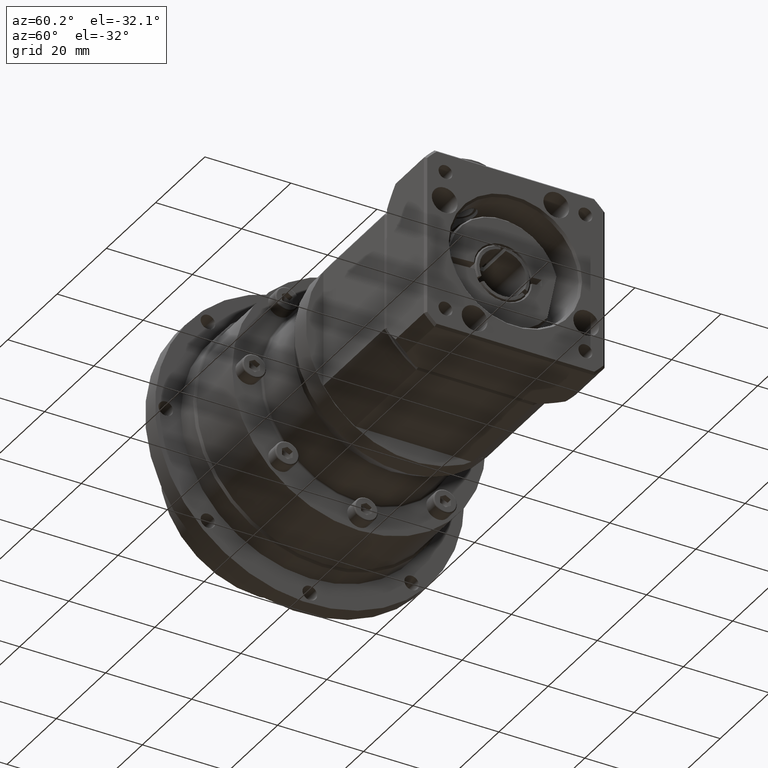
[diagram: clean part render]
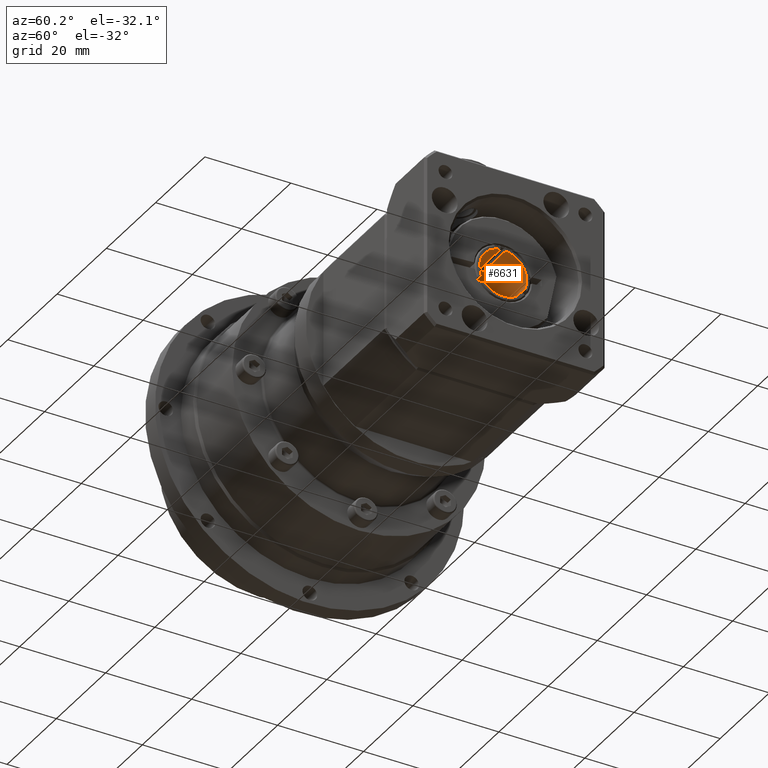
[diagram: same view with one face highlighted and labeled with its STEP entity id]
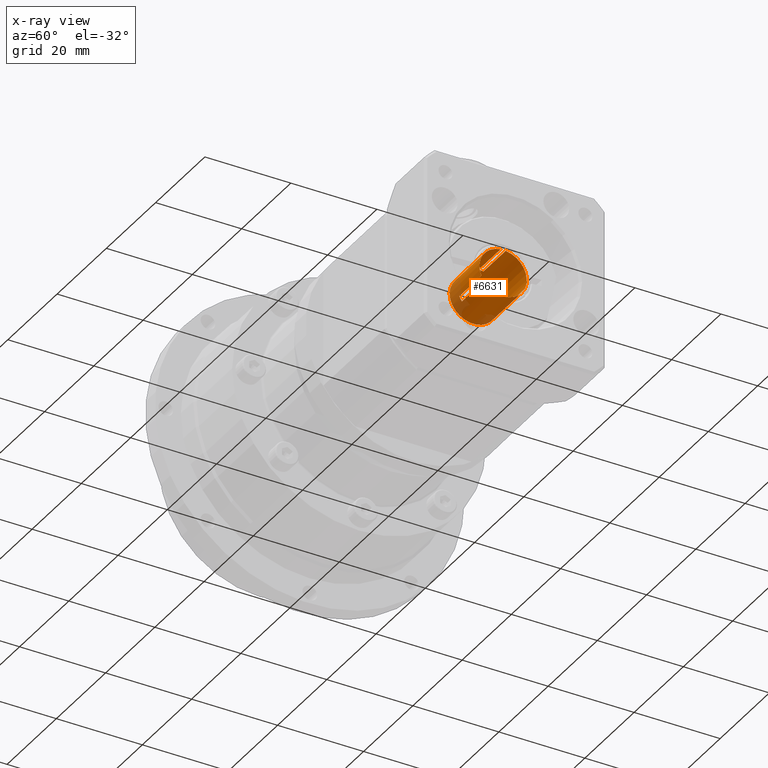
[diagram: x-ray of the same camera — body ghosted, the highlighted face saturated]
A machine part, auxiliary view. The second image highlights one B-rep face of the part: STEP entity #6631.
The next image is the same camera in x-ray: the body ghosted, the highlighted face saturated — about 14% of this face is hidden behind the body in this view.
In plain terms, the highlighted cylindrical surface (bore or boss wall) has radius 5.5 mm, axis along (1, 0, 0).
Its self-contained STEP definition (entity closure, byte-faithful):
#393=LINE('',#11329,#671);
#400=LINE('',#11350,#678);
#403=LINE('',#11360,#681);
#406=LINE('',#11370,#684);
#409=LINE('',#11384,#687);
#410=LINE('',#11388,#688);
#671=VECTOR('',#9222,9.);
#678=VECTOR('',#9239,9.);
#681=VECTOR('',#9244,9.);
#684=VECTOR('',#9249,9.);
#687=VECTOR('',#9258,9.);
#688=VECTOR('',#9261,9.);
#1285=CYLINDRICAL_SURFACE('',#7439,5.5);
#1553=FACE_BOUND('',#2694,.T.);
#1979=FACE_OUTER_BOUND('',#2693,.T.);
#2693=EDGE_LOOP('',(#5796));
#2694=EDGE_LOOP('',(#5797,#5798,#5799,#5800,#5801,#5802,#5803,#5804,#5805,
#5806,#5807,#5808));
#3059=CIRCLE('',#7433,5.5);
#3060=CIRCLE('',#7435,5.5);
#3061=CIRCLE('',#7440,5.5);
#3062=CIRCLE('',#7441,5.5);
#3063=CIRCLE('',#7442,5.5);
#3064=CIRCLE('',#7443,5.5);
#3065=CIRCLE('',#7444,5.5);
#3618=VERTEX_POINT('',#11327);
#3619=VERTEX_POINT('',#11328);
#3622=VERTEX_POINT('',#11339);
#3623=VERTEX_POINT('',#11340);
#3624=VERTEX_POINT('',#11345);
#3625=VERTEX_POINT('',#11349);
#3628=VERTEX_POINT('',#11359);
#3631=VERTEX_POINT('',#11369);
#3634=VERTEX_POINT('',#11379);
#3635=VERTEX_POINT('',#11381);
#3636=VERTEX_POINT('',#11383);
#3637=VERTEX_POINT('',#11385);
#3638=VERTEX_POINT('',#11387);
#4347=EDGE_CURVE('',#3618,#3619,#393,.T.);
#4352=EDGE_CURVE('',#3622,#3623,#3059,.T.);
#4355=EDGE_CURVE('',#3624,#3618,#3060,.T.);
#4357=EDGE_CURVE('',#3623,#3625,#400,.T.);
#4361=EDGE_CURVE('',#3628,#3624,#403,.T.);
#4365=EDGE_CURVE('',#3631,#3622,#406,.T.);
#4369=EDGE_CURVE('',#3634,#3634,#3061,.T.);
#4370=EDGE_CURVE('',#3619,#3635,#3062,.T.);
#4371=EDGE_CURVE('',#3635,#3636,#409,.T.);
#4372=EDGE_CURVE('',#3636,#3637,#3063,.T.);
#4373=EDGE_CURVE('',#3637,#3638,#410,.T.);
#4374=EDGE_CURVE('',#3638,#3631,#3064,.T.);
#4375=EDGE_CURVE('',#3625,#3628,#3065,.T.);
#5796=ORIENTED_EDGE('',*,*,#4369,.F.);
#5797=ORIENTED_EDGE('',*,*,#4361,.T.);
#5798=ORIENTED_EDGE('',*,*,#4355,.T.);
#5799=ORIENTED_EDGE('',*,*,#4347,.T.);
#5800=ORIENTED_EDGE('',*,*,#4370,.T.);
#5801=ORIENTED_EDGE('',*,*,#4371,.T.);
#5802=ORIENTED_EDGE('',*,*,#4372,.T.);
#5803=ORIENTED_EDGE('',*,*,#4373,.T.);
#5804=ORIENTED_EDGE('',*,*,#4374,.T.);
#5805=ORIENTED_EDGE('',*,*,#4365,.T.);
#5806=ORIENTED_EDGE('',*,*,#4352,.T.);
#5807=ORIENTED_EDGE('',*,*,#4357,.T.);
#5808=ORIENTED_EDGE('',*,*,#4375,.T.);
#6631=ADVANCED_FACE('',(#1979,#1553),#1285,.F.);
#7433=AXIS2_PLACEMENT_3D('',#11341,#9228,#9229);
#7435=AXIS2_PLACEMENT_3D('',#11346,#9234,#9235);
#7439=AXIS2_PLACEMENT_3D('',#11378,#9252,#9253);
#7440=AXIS2_PLACEMENT_3D('',#11380,#9254,#9255);
#7441=AXIS2_PLACEMENT_3D('',#11382,#9256,#9257);
#7442=AXIS2_PLACEMENT_3D('',#11386,#9259,#9260);
#7443=AXIS2_PLACEMENT_3D('',#11389,#9262,#9263);
#7444=AXIS2_PLACEMENT_3D('',#11390,#9264,#9265);
#9222=DIRECTION('',(1.,1.7517152775861E-15,2.54669183870166E-15));
#9228=DIRECTION('center_axis',(1.,1.73264924432054E-15,2.55901852258874E-15));
#9229=DIRECTION('ref_axis',(-1.73976605858095E-15,1.,-2.15105711021124E-16));
#9234=DIRECTION('center_axis',(1.,1.73264924432054E-15,2.55901852258874E-15));
#9235=DIRECTION('ref_axis',(-1.73976605858095E-15,1.,-2.15105711021124E-16));
#9239=DIRECTION('',(1.,1.7517152775861E-15,2.54669183870166E-15));
#9244=DIRECTION('',(-1.,-1.7517152775861E-15,-2.54669183870166E-15));
#9249=DIRECTION('',(-1.,-1.7517152775861E-15,-2.54669183870166E-15));
#9252=DIRECTION('center_axis',(1.,1.7517152775861E-15,2.54669183870166E-15));
#9253=DIRECTION('ref_axis',(-1.73976605858095E-15,1.,-2.15105711021124E-16));
#9254=DIRECTION('center_axis',(1.,1.7517152775861E-15,2.54669183870166E-15));
#9255=DIRECTION('ref_axis',(2.54669183870166E-15,-2.1510571102112E-16,-1.));
#9256=DIRECTION('center_axis',(1.,1.7517152775861E-15,2.54669183870166E-15));
#9257=DIRECTION('ref_axis',(2.54669183870166E-15,-2.1510571102112E-16,-1.));
#9258=DIRECTION('',(-1.,-1.7517152775861E-15,-2.54669183870166E-15));
#9259=DIRECTION('center_axis',(1.,1.75399968710179E-15,2.54669183870166E-15));
#9260=DIRECTION('ref_axis',(-1.73976605858095E-15,1.,-2.15105711021124E-16));
#9261=DIRECTION('',(1.,1.7517152775861E-15,2.54669183870166E-15));
#9262=DIRECTION('center_axis',(1.,1.7517152775861E-15,2.54669183870166E-15));
#9263=DIRECTION('ref_axis',(2.54669183870166E-15,-2.1510571102112E-16,-1.));
#9264=DIRECTION('center_axis',(1.,1.7517152775861E-15,2.54669183870166E-15));
#9265=DIRECTION('ref_axis',(2.54669183870166E-15,-2.1510571102112E-16,-1.));
#11327=CARTESIAN_POINT('',(49.8264486176498,9.43983932892231,-63.5991669864721));
#11328=CARTESIAN_POINT('',(58.8264486176498,9.43983932892232,-63.5991669864721));
#11329=CARTESIAN_POINT('',(52.7514486176498,9.43983932892231,-63.5991669864721));
#11339=CARTESIAN_POINT('',(49.8264486176498,-0.629585152005771,-63.5991669864721));
#11340=CARTESIAN_POINT('',(49.8264486176498,-0.0295851520057716,-64.6383974710134));
#11341=CARTESIAN_POINT('Origin',(49.8264486176498,4.40512708845827,-61.3851948421755));
#11345=CARTESIAN_POINT('',(49.8264486176498,8.8398393289223,-64.6383974710134));
#11346=CARTESIAN_POINT('Origin',(49.8264486176498,4.40512708845827,-61.3851948421755));
#11349=CARTESIAN_POINT('',(58.8264486176498,-0.0295851520057561,-64.6383974710134));
#11350=CARTESIAN_POINT('',(52.7514486176498,-0.0295851520057677,-64.6383974710134));
#11359=CARTESIAN_POINT('',(58.8264486176498,8.83983932892232,-64.6383974710134));
#11360=CARTESIAN_POINT('',(52.7514486176498,8.83983932892231,-64.6383974710134));
#11369=CARTESIAN_POINT('',(58.8264486176498,-0.629585152005755,-63.5991669864721));
#11370=CARTESIAN_POINT('',(52.7514486176498,-0.629585152005765,-63.5991669864721));
#11378=CARTESIAN_POINT('Origin',(52.7514486176498,4.40512708845827,-61.3851948421754));
#11379=CARTESIAN_POINT('',(46.6764486176498,9.90512708845826,-61.3851948421755));
#11380=CARTESIAN_POINT('Origin',(46.6764486176498,4.40512708845826,-61.3851948421755));
#11381=CARTESIAN_POINT('',(58.8264486176498,5.00512708845828,-55.9180200690408));
#11382=CARTESIAN_POINT('Origin',(58.8264486176498,4.40512708845828,-61.3851948421754));
#11383=CARTESIAN_POINT('',(49.8264486176498,5.00512708845827,-55.9180200690408));
#11384=CARTESIAN_POINT('',(52.7514486176498,5.00512708845827,-55.9180200690408));
#11385=CARTESIAN_POINT('',(49.8264486176498,3.80512708845827,-55.9180200690408));
#11386=CARTESIAN_POINT('Origin',(49.8264486176498,4.40512708845827,-61.3851948421755));
#11387=CARTESIAN_POINT('',(58.8264486176498,3.80512708845828,-55.9180200690408));
#11388=CARTESIAN_POINT('',(52.7514486176498,3.80512708845827,-55.9180200690408));
#11389=CARTESIAN_POINT('Origin',(58.8264486176498,4.40512708845828,-61.3851948421754));
#11390=CARTESIAN_POINT('Origin',(58.8264486176498,4.40512708845828,-61.3851948421754));